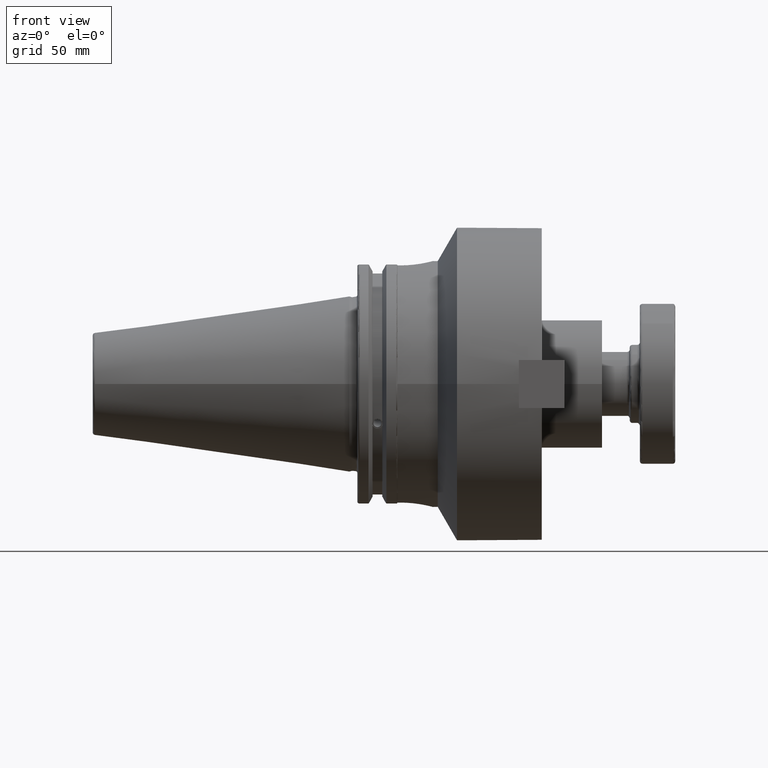
[diagram: clean part render]
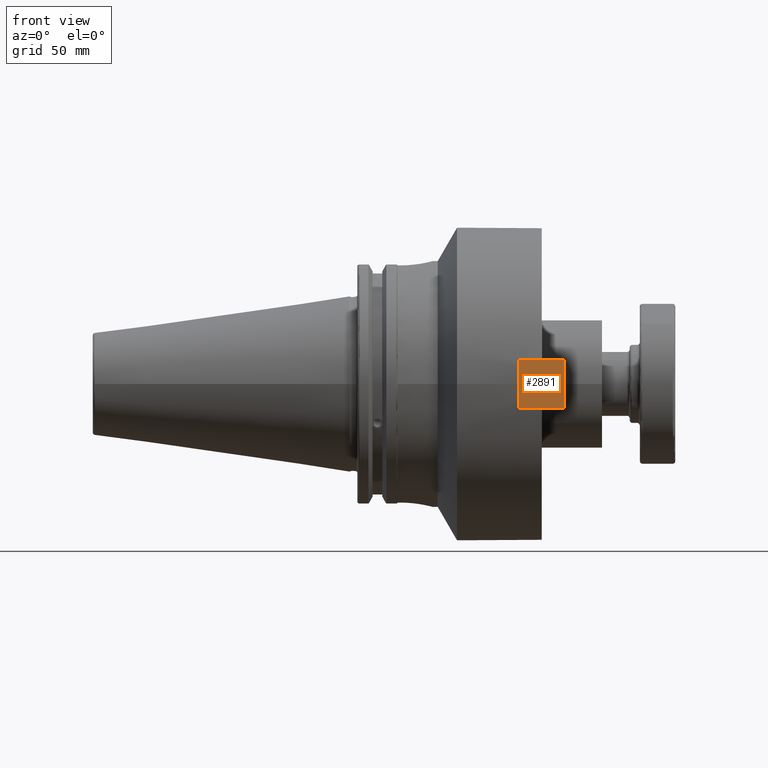
[diagram: same view with one face highlighted and labeled with its STEP entity id]
A machine part, front view. The second image highlights one B-rep face of the part: STEP entity #2891.
In plain terms, the highlighted planar face has unit normal (-0, -1, -0).
Its self-contained STEP definition (entity closure, byte-faithful):
#896=FACE_OUTER_BOUND('',#1062,.T.);
#1062=EDGE_LOOP('',(#2568,#2569,#2570,#2571));
#1221=LINE('',#5611,#1380);
#1222=LINE('',#5614,#1381);
#1223=LINE('',#5616,#1382);
#1224=LINE('',#5617,#1383);
#1380=VECTOR('',#4011,10.);
#1381=VECTOR('',#4014,10.);
#1382=VECTOR('',#4015,10.);
#1383=VECTOR('',#4016,10.);
#1606=VERTEX_POINT('',#5604);
#1609=VERTEX_POINT('',#5609);
#1610=VERTEX_POINT('',#5613);
#1611=VERTEX_POINT('',#5615);
#1936=EDGE_CURVE('',#1606,#1609,#1221,.T.);
#1937=EDGE_CURVE('',#1610,#1606,#1222,.T.);
#1938=EDGE_CURVE('',#1611,#1609,#1223,.T.);
#1939=EDGE_CURVE('',#1610,#1611,#1224,.T.);
#2568=ORIENTED_EDGE('',*,*,#1937,.T.);
#2569=ORIENTED_EDGE('',*,*,#1936,.T.);
#2570=ORIENTED_EDGE('',*,*,#1938,.F.);
#2571=ORIENTED_EDGE('',*,*,#1939,.F.);
#2761=PLANE('',#3314);
#2891=ADVANCED_FACE('',(#896),#2761,.T.);
#3314=AXIS2_PLACEMENT_3D('',#5612,#4012,#4013);
#4011=DIRECTION('',(0.,1.,0.));
#4012=DIRECTION('center_axis',(0.,0.,-1.));
#4013=DIRECTION('ref_axis',(-1.,0.,0.));
#4014=DIRECTION('',(-1.,0.,0.));
#4015=DIRECTION('',(-1.,0.,0.));
#4016=DIRECTION('',(0.,1.,0.));
#5604=CARTESIAN_POINT('',(-9.525,0.,-12.475));
#5609=CARTESIAN_POINT('',(-9.525,18.,-12.475));
#5611=CARTESIAN_POINT('',(-9.525,0.,-12.475));
#5612=CARTESIAN_POINT('Origin',(9.525,0.,-12.475));
#5613=CARTESIAN_POINT('',(9.525,0.,-12.475));
#5614=CARTESIAN_POINT('',(9.525,0.,-12.475));
#5615=CARTESIAN_POINT('',(9.525,18.,-12.475));
#5616=CARTESIAN_POINT('',(9.525,18.,-12.475));
#5617=CARTESIAN_POINT('',(9.525,0.,-12.475));